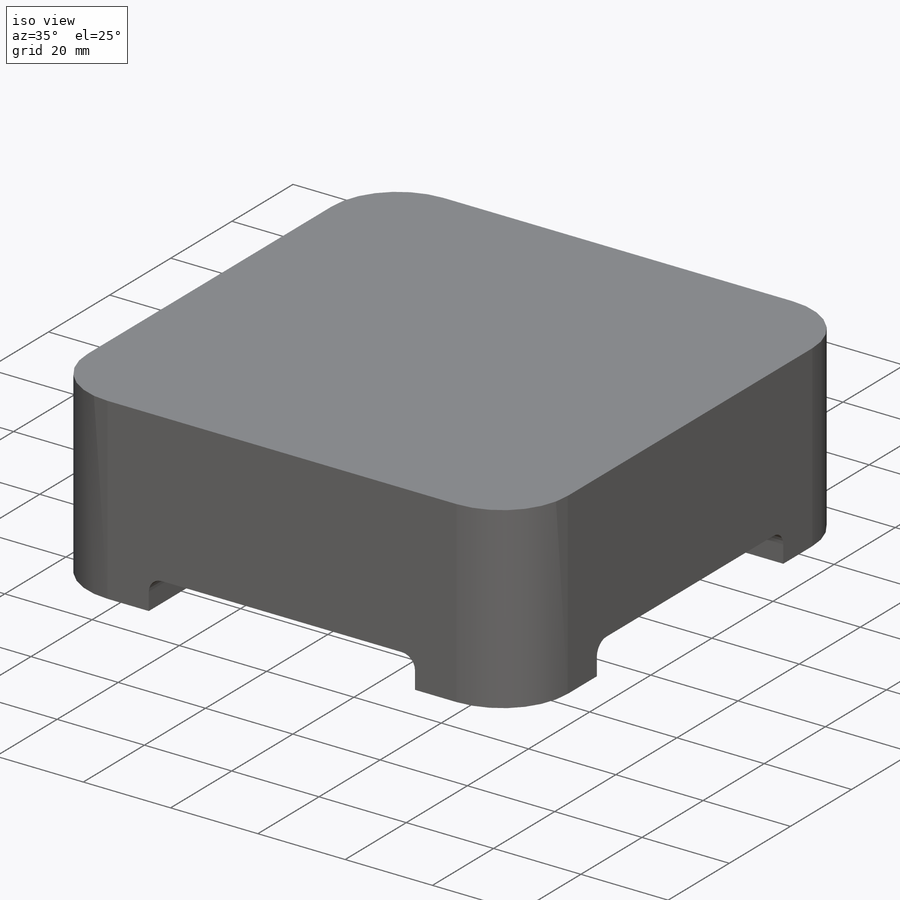
[diagram: iso view]
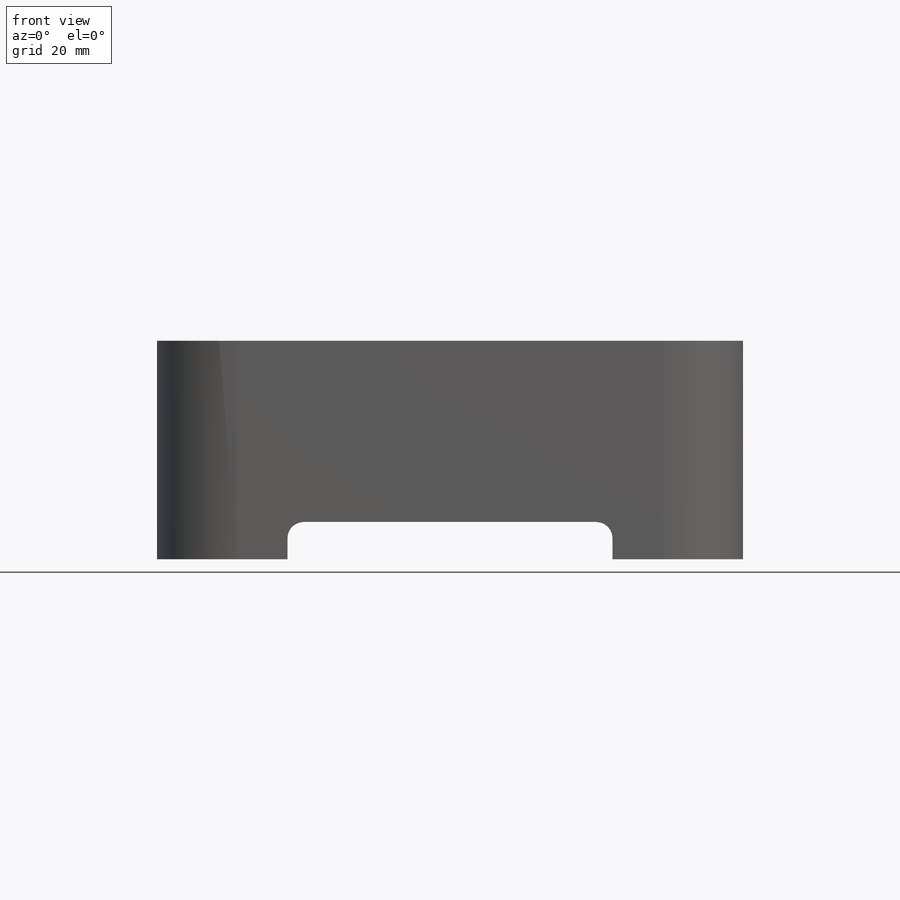
[diagram: front view]
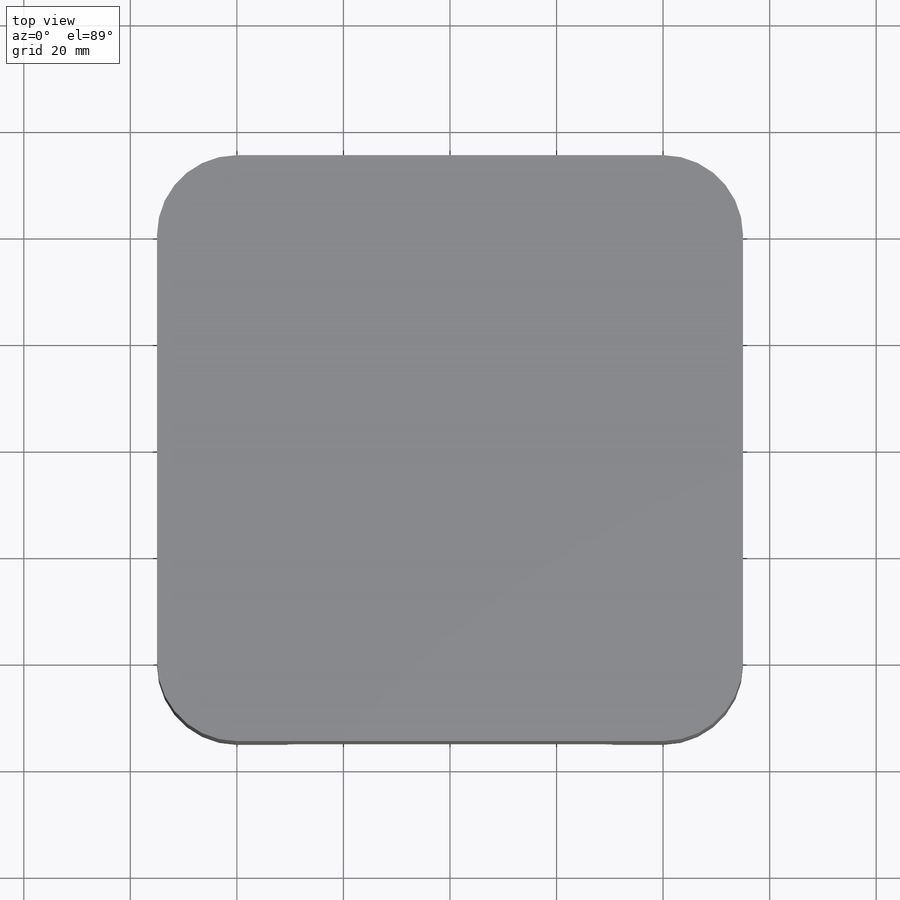
[diagram: top view]
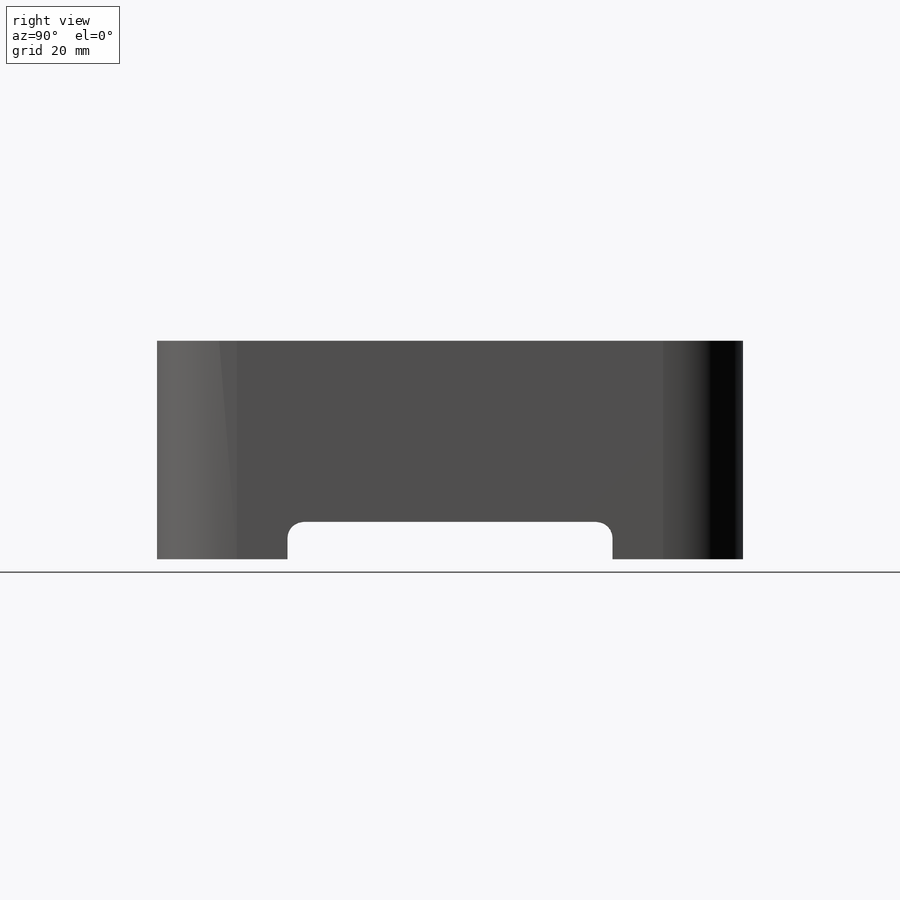
[diagram: right view]
SOLIDWORKS PART (.sldprt)
format: sldprt  version: not decoded by parser v0  size: 161,280 bytes
history: native  units: mm
features: plane x3, sketch x2, material x1, extrude x1, fillet x1, cut_extrude x1, pattern_circular x1 (+9 scaffold rows collapsed)
feature tree (19):
  scaffold x9  (default folders/planes/origin — collapsed)
  material  "PVC hart"
  plane  "Ebene vorne"
  plane  "Ebene oben"
  plane  "Ebene rechts"
  sketch  "Skizze1"  dims[c1.D1=~77.731506mm c1.D2=~90.570043mm c2.D1=110.0mm]
  extrude  "Aufsatz-Linear austragen1"  Depth=41mm
  fillet  "Verrundung1"  Radius=15mm
  sketch  "Skizze2"  dims[D1=7.0mm D2=55.0mm D3=61.0mm D4=61.0mm]
  cut_extrude  "Schnitt-Linear austragen1"  [1 undecoded]
  pattern_circular  "Kreismuster1"  Count=2 Angle=90deg
decode coverage: 5 of 6 modeling features carry decoded parameters
note: ~ marks probable driven/reference dimensions
note: 1 parameter value undecoded
note: suppression state not decoded; provenance and decode notes live in map.json
